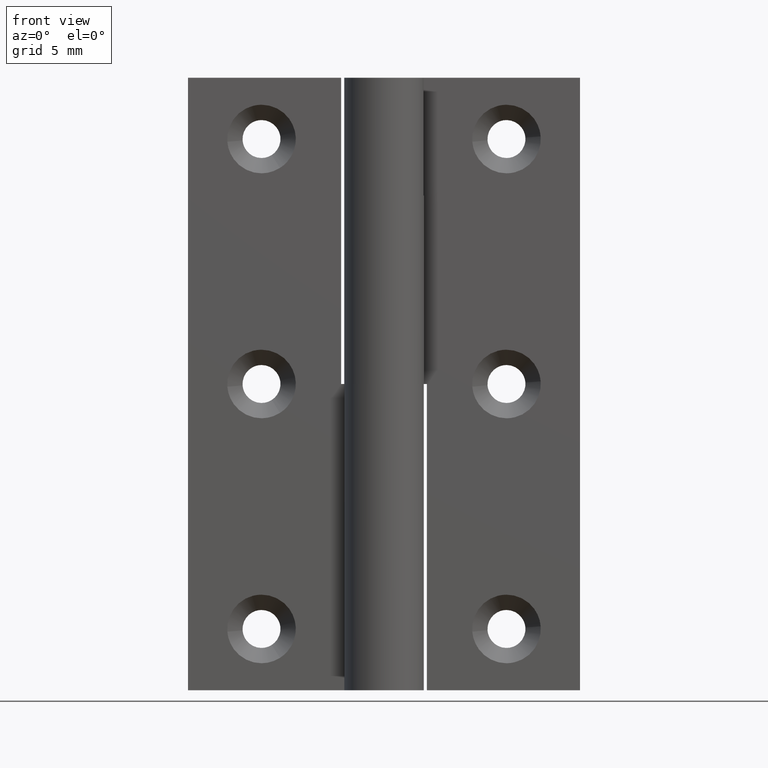
[diagram: clean part render]
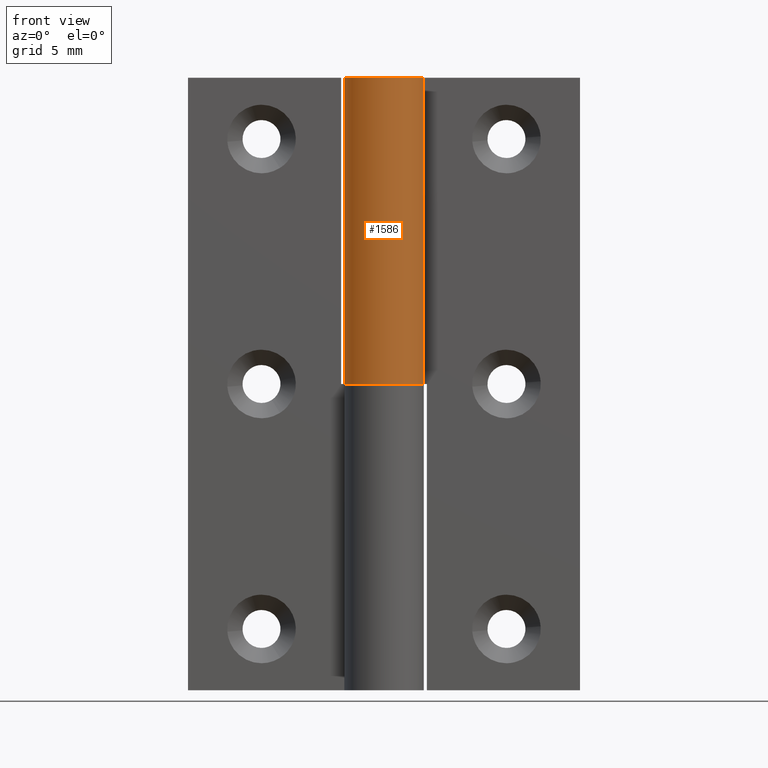
[diagram: same view with one face highlighted and labeled with its STEP entity id]
A machine part, front view. The second image highlights one B-rep face of the part: STEP entity #1586.
In plain terms, the highlighted face is a freeform B-spline surface patch.
Its self-contained STEP definition (entity closure, byte-faithful):
#1371=CARTESIAN_POINT('',(2.769927796892915,1.700000000000000,25.0));
#1372=VERTEX_POINT('',#1371);
#1378=CARTESIAN_POINT('',(0.0,3.250000000000000,25.0));
#1379=VERTEX_POINT('',#1378);
#1380=CARTESIAN_POINT('',(0.0,3.250000000000000,25.0));
#1381=CARTESIAN_POINT('',(-2.511193200291035,3.250000000000000,24.999999999999993));
#1382=CARTESIAN_POINT('',(-3.144836189738636,0.820064229015129,25.0));
#1383=CARTESIAN_POINT('',(-3.778479179186237,-1.609871541969746,24.999999999999993));
#1384=CARTESIAN_POINT('',(-1.587057024810390,-2.836150560178354,25.0));
#1385=CARTESIAN_POINT('',(0.604365129565457,-4.062429578386963,24.999999999999993));
#1386=CARTESIAN_POINT('',(2.343920069459146,-2.251341535171115,25.0));
#1387=CARTESIAN_POINT('',(4.083475009352835,-0.440253491955268,24.999999999999993));
#1388=CARTESIAN_POINT('',(2.769927796892911,1.699999999999996,25.0));
#1396=(BOUNDED_CURVE()B_SPLINE_CURVE(2,(#1380,#1381,#1382,#1383,#1384,#1385,#1386,#1387,#1388),.UNSPECIFIED.,.F.,.U.)B_SPLINE_CURVE_WITH_KNOTS((3,2,2,2,3),(0.0,0.250000000000000,0.500000000000000,0.750000000000000,1.0),.UNSPECIFIED.)CURVE()GEOMETRIC_REPRESENTATION_ITEM()RATIONAL_B_SPLINE_CURVE((1.0,0.791305078677490,1.0,0.791305078677490,1.0,0.791305078677490,1.0,0.791305078677490,1.0))REPRESENTATION_ITEM(''));
#1397=EDGE_CURVE('',#1379,#1372,#1396,.T.);
#1450=CARTESIAN_POINT('',(0.0,3.250000000000000,50.0));
#1451=VERTEX_POINT('',#1450);
#1457=CARTESIAN_POINT('',(2.769927796892915,1.700000000000000,50.0));
#1458=VERTEX_POINT('',#1457);
#1459=CARTESIAN_POINT('',(2.769927796892910,1.699999999999998,50.0));
#1460=CARTESIAN_POINT('',(4.083475009352835,-0.440253491955265,50.0));
#1461=CARTESIAN_POINT('',(2.343920069459148,-2.251341535171113,50.0));
#1462=CARTESIAN_POINT('',(0.604365129565461,-4.062429578386961,50.0));
#1463=CARTESIAN_POINT('',(-1.587057024810386,-2.836150560178357,50.0));
#1464=CARTESIAN_POINT('',(-3.778479179186236,-1.609871541969749,50.0));
#1465=CARTESIAN_POINT('',(-3.144836189738637,0.820064229015126,50.0));
#1466=CARTESIAN_POINT('',(-2.511193200291038,3.250000000000000,50.0));
#1467=CARTESIAN_POINT('',(0.0,3.250000000000000,50.0));
#1475=(BOUNDED_CURVE()B_SPLINE_CURVE(2,(#1459,#1460,#1461,#1462,#1463,#1464,#1465,#1466,#1467),.UNSPECIFIED.,.F.,.U.)B_SPLINE_CURVE_WITH_KNOTS((3,2,2,2,3),(0.0,0.250000000000000,0.500000000000000,0.750000000000000,1.0),.UNSPECIFIED.)CURVE()GEOMETRIC_REPRESENTATION_ITEM()RATIONAL_B_SPLINE_CURVE((1.0,0.791305078677490,1.0,0.791305078677490,1.0,0.791305078677490,1.0,0.791305078677490,1.0))REPRESENTATION_ITEM(''));
#1476=EDGE_CURVE('',#1458,#1451,#1475,.T.);
#1546=CARTESIAN_POINT('',(2.769927796892915,1.700000000000000,50.0));
#1547=CARTESIAN_POINT('',(2.769927796892915,1.700000000000000,25.0));
#1548=QUASI_UNIFORM_CURVE('',1,(#1546,#1547),.UNSPECIFIED.,.F.,.U.);
#1549=EDGE_CURVE('',#1458,#1372,#1548,.T.);
#1554=CARTESIAN_POINT('',(0.028361240369712,3.249876249958556,50.625000000000007));
#1555=CARTESIAN_POINT('',(0.028361240369712,3.249876249958556,24.359375000000000));
#1556=CARTESIAN_POINT('',(-3.961117240121673,3.284691901211877,50.625000000000000));
#1557=CARTESIAN_POINT('',(-3.961117240121673,3.284691901211877,24.359375000000000));
#1558=CARTESIAN_POINT('',(-3.188470968471400,-0.629406770868449,50.625000000000007));
#1559=CARTESIAN_POINT('',(-3.188470968471400,-0.629406770868449,24.359375000000000));
#1560=CARTESIAN_POINT('',(-2.415824696821127,-4.543505442948775,50.625000000000000));
#1561=CARTESIAN_POINT('',(-2.415824696821127,-4.543505442948775,24.359375000000000));
#1562=CARTESIAN_POINT('',(1.261168477021222,-2.995322031529827,50.625000000000007));
#1563=CARTESIAN_POINT('',(1.261168477021222,-2.995322031529827,24.359375000000000));
#1564=CARTESIAN_POINT('',(4.938161650863570,-1.447138620110878,50.625000000000000));
#1565=CARTESIAN_POINT('',(4.938161650863570,-1.447138620110878,24.359375000000000));
#1566=CARTESIAN_POINT('',(2.678410113021551,1.840820270005705,50.625000000000007));
#1567=CARTESIAN_POINT('',(2.678410113021551,1.840820270005705,24.359375000000000));
#1575=(BOUNDED_SURFACE()B_SPLINE_SURFACE(1,2,((#1554,#1556,#1558,#1560,#1562,#1564,#1566),(#1555,#1557,#1559,#1561,#1563,#1565,#1567)),.UNSPECIFIED.,.F.,.F.,.U.)B_SPLINE_SURFACE_WITH_KNOTS((2,2),(3,2,2,3),(0.0,26.265625000000011),(0.0,6.177488648714227,12.354977297428450,18.532465946142679),.UNSPECIFIED.)GEOMETRIC_REPRESENTATION_ITEM()RATIONAL_B_SPLINE_SURFACE(((1.0,0.631578351302498,1.0,0.631578351302498,1.0,0.631578351302498,1.0),(1.0,0.631578351302498,1.0,0.631578351302498,1.0,0.631578351302498,1.0)))REPRESENTATION_ITEM('')SURFACE());
#1576=ORIENTED_EDGE('',*,*,#1397,.T.);
#1577=ORIENTED_EDGE('',*,*,#1549,.F.);
#1578=ORIENTED_EDGE('',*,*,#1476,.T.);
#1579=CARTESIAN_POINT('',(0.0,3.250000000000000,50.0));
#1580=CARTESIAN_POINT('',(0.0,3.250000000000000,25.0));
#1581=QUASI_UNIFORM_CURVE('',1,(#1579,#1580),.UNSPECIFIED.,.F.,.U.);
#1582=EDGE_CURVE('',#1451,#1379,#1581,.T.);
#1583=ORIENTED_EDGE('',*,*,#1582,.T.);
#1584=EDGE_LOOP('',(#1576,#1577,#1578,#1583));
#1585=FACE_OUTER_BOUND('',#1584,.T.);
#1586=ADVANCED_FACE('',(#1585),#1575,.T.);